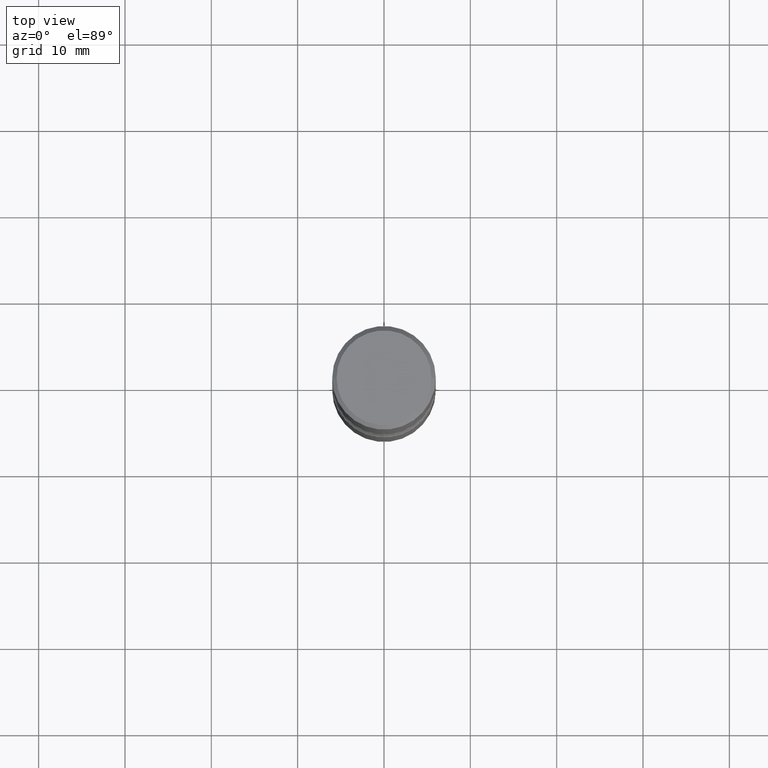
[diagram: clean part render]
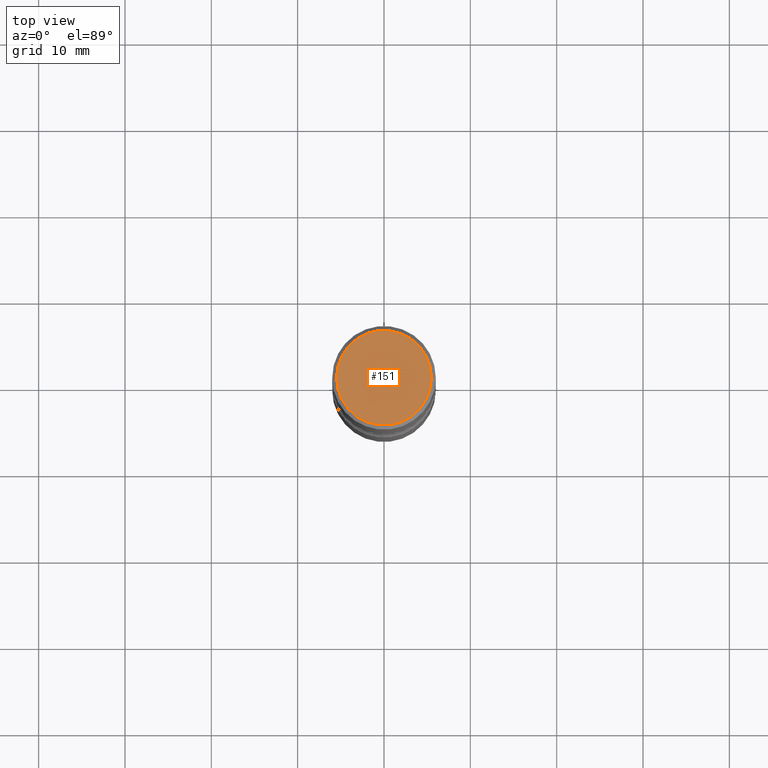
[diagram: same view with one face highlighted and labeled with its STEP entity id]
A machine part, top view. The second image highlights one B-rep face of the part: STEP entity #151.
In plain terms, the highlighted planar face has unit normal (0, -0, -1).
Its self-contained STEP definition (entity closure, byte-faithful):
#19 = CARTESIAN_POINT ( 'NONE',  ( 1.509716530915770323E-15, 0.2161999999999999478, -7.633952904380885788E-16 ) ) ;
#24 = CIRCLE ( 'NONE', #100, 0.2161999999999999478 ) ;
#58 = DIRECTION ( 'NONE',  ( 1.000000000000000000, -6.982962677686266711E-15, 4.875778670202486949E-29 ) ) ;
#99 = ORIENTED_EDGE ( 'NONE', *, *, #203, .T. ) ;
#100 = AXIS2_PLACEMENT_3D ( 'NONE', #153, #286, #58 ) ;
#151 = ADVANCED_FACE ( 'NONE', ( #326 ), #455, .F. ) ;
#153 = CARTESIAN_POINT ( 'NONE',  ( 4.175405657340879278E-46, -5.961372681521788801E-32, -1.707404996040164512E-17 ) ) ;
#178 = VERTEX_POINT ( 'NONE', #287 ) ;
#199 = DIRECTION ( 'NONE',  ( -2.445468806185136597E-29, 3.491481338843145583E-15, 1.000000000000000000 ) ) ;
#203 = EDGE_CURVE ( 'NONE', #439, #178, #537, .T. ) ;
#286 = DIRECTION ( 'NONE',  ( -2.445468806185136597E-29, 3.491481338843145583E-15, 1.000000000000000000 ) ) ;
#287 = CARTESIAN_POINT ( 'NONE',  ( -0.2161999999999999478, 1.544631344304201775E-15, -1.707404996041232555E-17 ) ) ;
#326 = FACE_OUTER_BOUND ( 'NONE', #348, .T. ) ;
#348 = EDGE_LOOP ( 'NONE', ( #424, #99 ) ) ;
#392 = AXIS2_PLACEMENT_3D ( 'NONE', #19, #499, #496 ) ;
#420 = DIRECTION ( 'NONE',  ( 1.000000000000000000, -6.982962677686266711E-15, 4.875778670202486949E-29 ) ) ;
#424 = ORIENTED_EDGE ( 'NONE', *, *, #474, .T. ) ;
#439 = VERTEX_POINT ( 'NONE', #527 ) ;
#452 = AXIS2_PLACEMENT_3D ( 'NONE', #463, #199, #420 ) ;
#455 = PLANE ( 'NONE',  #392 ) ;
#463 = CARTESIAN_POINT ( 'NONE',  ( 4.175405657340879278E-46, -5.961372681521788801E-32, -1.707404996040164512E-17 ) ) ;
#474 = EDGE_CURVE ( 'NONE', #178, #439, #24, .T. ) ;
#496 = DIRECTION ( 'NONE',  ( -1.000000000000000000, 6.982962677686265922E-15, -4.876176775795935793E-29 ) ) ;
#499 = DIRECTION ( 'NONE',  ( 2.438088387897960049E-29, -3.491481338843145188E-15, -1.000000000000000000 ) ) ;
#527 = CARTESIAN_POINT ( 'NONE',  ( 0.2161999999999999478, -1.586759460484351396E-15, -1.707404996039081677E-17 ) ) ;
#537 = CIRCLE ( 'NONE', #452, 0.2161999999999999478 ) ;